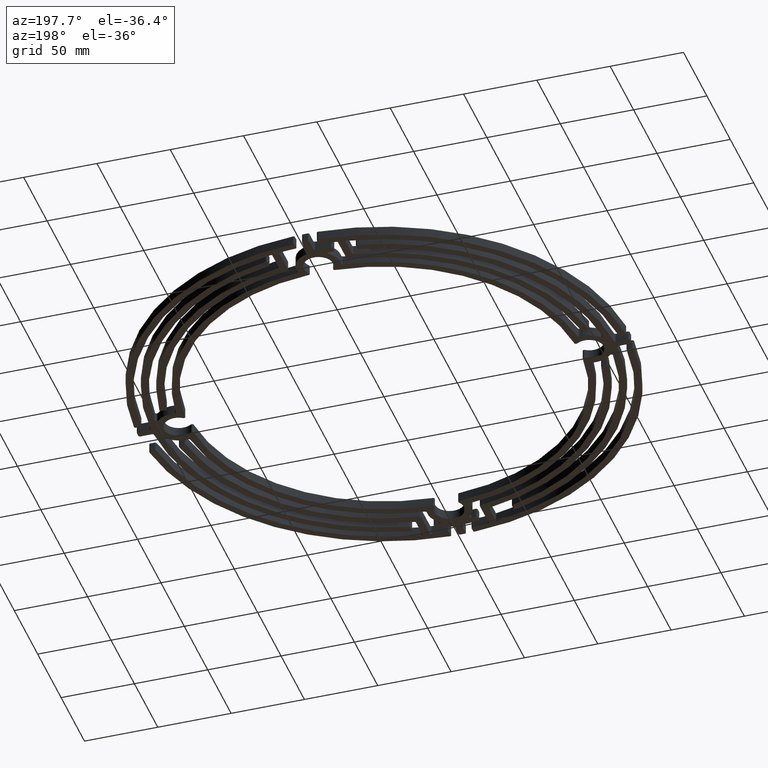
[diagram: clean part render]
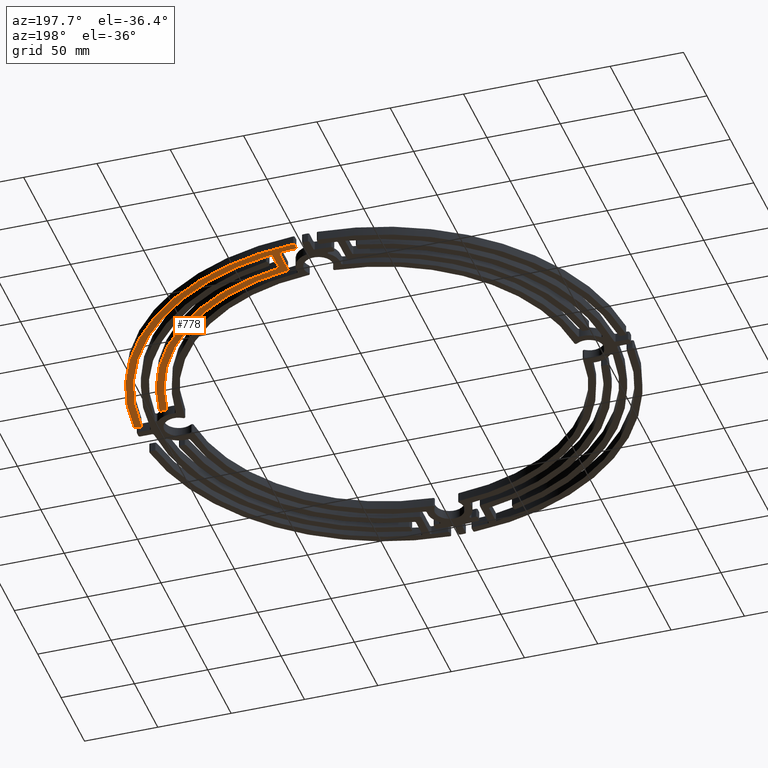
[diagram: same view with one face highlighted and labeled with its STEP entity id]
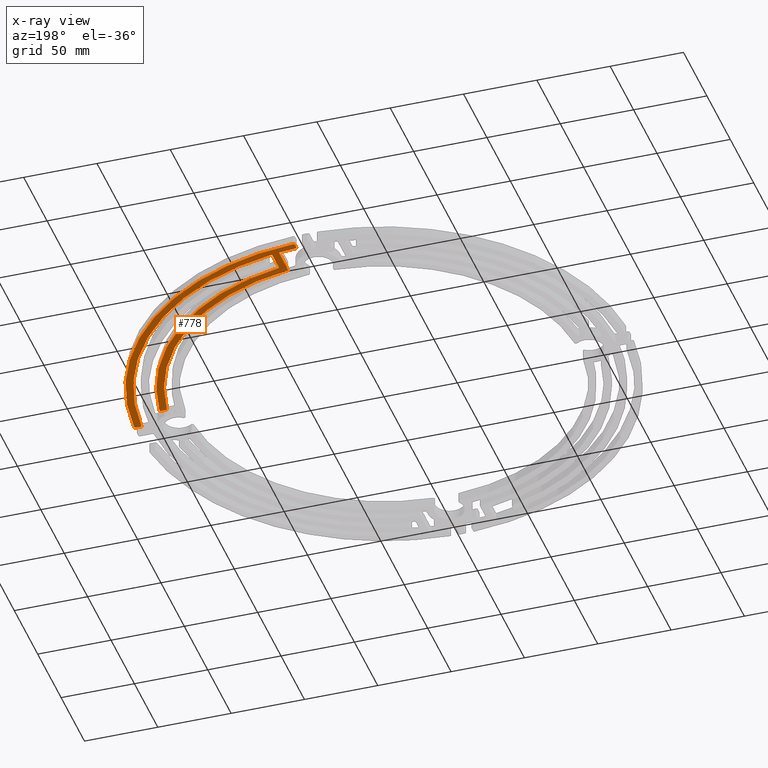
[diagram: x-ray of the same camera — body ghosted, the highlighted face saturated]
A machine part, auxiliary view. The second image highlights one B-rep face of the part: STEP entity #778.
The next image is the same camera in x-ray: the body ghosted, the highlighted face saturated — about 0% of this face is hidden behind the body in this view.
In plain terms, the highlighted planar face has unit normal (0, 0, 1).
Its self-contained STEP definition (entity closure, byte-faithful):
#12 = VERTEX_POINT ( 'NONE', #815 ) ;
#22 = VERTEX_POINT ( 'NONE', #825 ) ;
#41 = VERTEX_POINT ( 'NONE', #844 ) ;
#100 = VERTEX_POINT ( 'NONE', #903 ) ;
#105 = VERTEX_POINT ( 'NONE', #908 ) ;
#136 = VERTEX_POINT ( 'NONE', #939 ) ;
#146 = VERTEX_POINT ( 'NONE', #949 ) ;
#158 = VERTEX_POINT ( 'NONE', #961 ) ;
#165 = VERTEX_POINT ( 'NONE', #968 ) ;
#166 = VERTEX_POINT ( 'NONE', #969 ) ;
#169 = VERTEX_POINT ( 'NONE', #972 ) ;
#642 = EDGE_CURVE ( 'NONE', #6843, #169, #4456, .T. ) ;
#644 = EDGE_CURVE ( 'NONE', #22, #12, #4459, .T. ) ;
#778 = ADVANCED_FACE ( 'NONE', ( #4679 ), #5262, .F. ) ;
#815 = CARTESIAN_POINT ( 'NONE',  ( 8.550898203592815600, 167.7822461999832300, 0.0000000000000000000 ) ) ;
#825 = CARTESIAN_POINT ( 'NONE',  ( 167.7822461999832300, 8.550898203592815600, 0.0000000000000000000 ) ) ;
#844 = CARTESIAN_POINT ( 'NONE',  ( 24.99999999999998600, 159.8999687304534500, 0.0000000000000000000 ) ) ;
#903 = CARTESIAN_POINT ( 'NONE',  ( 19.99999999999998900, 161.7683529000651100, 0.0000000000000000000 ) ) ;
#908 = CARTESIAN_POINT ( 'NONE',  ( 7.500000000000000000, 166.7835423535547100, 0.0000000000000000000 ) ) ;
#939 = CARTESIAN_POINT ( 'NONE',  ( 19.99999999999998600, 142.4605208470051700, 0.0000000000000000000 ) ) ;
#949 = CARTESIAN_POINT ( 'NONE',  ( 7.500000000000000900, 163.7795774814430300, 0.0000000000000000000 ) ) ;
#961 = CARTESIAN_POINT ( 'NONE',  ( 8.448170731707319800, 162.7809215211903200, 0.0000000000000000000 ) ) ;
#968 = CARTESIAN_POINT ( 'NONE',  ( 163.7795774814430000, 7.500000000000000000, 0.0000000000000000000 ) ) ;
#969 = CARTESIAN_POINT ( 'NONE',  ( 166.7835423535547100, 7.500000000000000000, 0.0000000000000000000 ) ) ;
#972 = CARTESIAN_POINT ( 'NONE',  ( 141.4712116744565000, 20.85416666666666400, 0.0000000000000000000 ) ) ;
#2455 = ORIENTED_EDGE ( 'NONE', *, *, #3028, .F. ) ;
#2462 = ORIENTED_EDGE ( 'NONE', *, *, #2961, .F. ) ;
#2467 = ORIENTED_EDGE ( 'NONE', *, *, #3108, .F. ) ;
#2472 = ORIENTED_EDGE ( 'NONE', *, *, #3071, .T. ) ;
#2475 = ORIENTED_EDGE ( 'NONE', *, *, #3018, .T. ) ;
#2477 = ORIENTED_EDGE ( 'NONE', *, *, #642, .F. ) ;
#2915 = EDGE_LOOP ( 'NONE', ( #2477, #2475, #2462, #2467, #2472, #2455, #3725, #3703, #3702, #3701, #3723, #3706, #3710, #3712, #3713, #3720, #3716, #3718, #3719 ) ) ;
#2961 = EDGE_CURVE ( 'NONE', #100, #136, #4686, .T. ) ;
#2974 = EDGE_CURVE ( 'NONE', #165, #3540, #4707, .T. ) ;
#2979 = EDGE_CURVE ( 'NONE', #165, #166, #4713, .T. ) ;
#2987 = EDGE_CURVE ( 'NONE', #3545, #3546, #6161, .T. ) ;
#3018 = EDGE_CURVE ( 'NONE', #6843, #136, #6201, .T. ) ;
#3027 = EDGE_CURVE ( 'NONE', #22, #166, #6216, .T. ) ;
#3028 = EDGE_CURVE ( 'NONE', #105, #146, #6215, .T. ) ;
#3034 = EDGE_CURVE ( 'NONE', #6773, #169, #6226, .T. ) ;
#3043 = EDGE_CURVE ( 'NONE', #3542, #3540, #6237, .T. ) ;
#3044 = EDGE_CURVE ( 'NONE', #3545, #6772, #6238, .T. ) ;
#3054 = EDGE_CURVE ( 'NONE', #105, #12, #6251, .T. ) ;
#3059 = EDGE_CURVE ( 'NONE', #3541, #3546, #6257, .T. ) ;
#3063 = EDGE_CURVE ( 'NONE', #3542, #41, #6262, .T. ) ;
#3070 = EDGE_CURVE ( 'NONE', #3541, #41, #6273, .T. ) ;
#3071 = EDGE_CURVE ( 'NONE', #158, #146, #6276, .T. ) ;
#3073 = EDGE_CURVE ( 'NONE', #6773, #6772, #6278, .T. ) ;
#3108 = EDGE_CURVE ( 'NONE', #158, #100, #6327, .T. ) ;
#3489 = AXIS2_PLACEMENT_3D ( 'NONE', #4876, #4877, #4878 ) ;
#3490 = AXIS2_PLACEMENT_3D ( 'NONE', #4881, #4882, #4883 ) ;
#3540 = VERTEX_POINT ( 'NONE', #6516 ) ;
#3541 = VERTEX_POINT ( 'NONE', #6517 ) ;
#3542 = VERTEX_POINT ( 'NONE', #6518 ) ;
#3545 = VERTEX_POINT ( 'NONE', #6521 ) ;
#3546 = VERTEX_POINT ( 'NONE', #6522 ) ;
#3701 = ORIENTED_EDGE ( 'NONE', *, *, #2979, .F. ) ;
#3702 = ORIENTED_EDGE ( 'NONE', *, *, #3027, .T. ) ;
#3703 = ORIENTED_EDGE ( 'NONE', *, *, #644, .F. ) ;
#3706 = ORIENTED_EDGE ( 'NONE', *, *, #3043, .F. ) ;
#3710 = ORIENTED_EDGE ( 'NONE', *, *, #3063, .T. ) ;
#3712 = ORIENTED_EDGE ( 'NONE', *, *, #3070, .F. ) ;
#3713 = ORIENTED_EDGE ( 'NONE', *, *, #3059, .T. ) ;
#3716 = ORIENTED_EDGE ( 'NONE', *, *, #3044, .T. ) ;
#3718 = ORIENTED_EDGE ( 'NONE', *, *, #3073, .F. ) ;
#3719 = ORIENTED_EDGE ( 'NONE', *, *, #3034, .T. ) ;
#3720 = ORIENTED_EDGE ( 'NONE', *, *, #2987, .F. ) ;
#3723 = ORIENTED_EDGE ( 'NONE', *, *, #2974, .T. ) ;
#3725 = ORIENTED_EDGE ( 'NONE', *, *, #3054, .T. ) ;
#4456 = CIRCLE ( 'NONE', #3489, 142.9999999999999700 ) ;
#4459 = CIRCLE ( 'NONE', #3490, 167.9999999999999400 ) ;
#4679 = FACE_OUTER_BOUND ( 'NONE', #2915, .T. ) ;
#4686 = LINE ( 'NONE', #5304, #4688 ) ;
#4688 = VECTOR ( 'NONE', #5305, 1000.000000000000000 ) ;
#4707 = CIRCLE ( 'NONE', #6008, 1.000000000000000900 ) ;
#4713 = LINE ( 'NONE', #5350, #4714 ) ;
#4714 = VECTOR ( 'NONE', #5351, 1000.000000000000000 ) ;
#4876 = CARTESIAN_POINT ( 'NONE',  ( 0.0000000000000000000, 0.0000000000000000000, 0.0000000000000000000 ) ) ;
#4877 = DIRECTION ( 'NONE',  ( -0.0000000000000000000, -0.0000000000000000000, -1.000000000000000000 ) ) ;
#4878 = DIRECTION ( 'NONE',  ( 1.000000000000000000, 0.0000000000000000000, 0.0000000000000000000 ) ) ;
#4881 = CARTESIAN_POINT ( 'NONE',  ( 0.0000000000000000000, 0.0000000000000000000, 0.0000000000000000000 ) ) ;
#4882 = DIRECTION ( 'NONE',  ( 0.0000000000000000000, 0.0000000000000000000, 1.000000000000000000 ) ) ;
#4883 = DIRECTION ( 'NONE',  ( 1.000000000000000000, 0.0000000000000000000, 0.0000000000000000000 ) ) ;
#5262 = PLANE ( 'NONE',  #5998 ) ;
#5263 = CARTESIAN_POINT ( 'NONE',  ( 0.0000000000000000000, 0.0000000000000000000, 0.0000000000000000000 ) ) ;
#5264 = DIRECTION ( 'NONE',  ( 0.0000000000000000000, 0.0000000000000000000, 1.000000000000000000 ) ) ;
#5265 = DIRECTION ( 'NONE',  ( 1.000000000000000000, 0.0000000000000000000, -0.0000000000000000000 ) ) ;
#5304 = CARTESIAN_POINT ( 'NONE',  ( 19.99999999999999300, 161.7683529000651100, 0.0000000000000000000 ) ) ;
#5305 = DIRECTION ( 'NONE',  ( -3.439546717504057800E-016, -1.000000000000000000, 0.0000000000000000000 ) ) ;
#5336 = CARTESIAN_POINT ( 'NONE',  ( 163.7795774814430000, 8.500000000000000000, 0.0000000000000000000 ) ) ;
#5337 = DIRECTION ( 'NONE',  ( -0.0000000000000000000, -0.0000000000000000000, -1.000000000000000000 ) ) ;
#5338 = DIRECTION ( 'NONE',  ( 1.000000000000000000, 0.0000000000000000000, 0.0000000000000000000 ) ) ;
#5350 = CARTESIAN_POINT ( 'NONE',  ( 162.8273625653869800, 7.500000000000000000, 0.0000000000000000000 ) ) ;
#5351 = DIRECTION ( 'NONE',  ( 1.000000000000000000, 0.0000000000000000000, 0.0000000000000000000 ) ) ;
#5371 = CARTESIAN_POINT ( 'NONE',  ( 0.0000000000000000000, 0.0000000000000000000, 0.0000000000000000000 ) ) ;
#5372 = DIRECTION ( 'NONE',  ( 0.0000000000000000000, 0.0000000000000000000, 1.000000000000000000 ) ) ;
#5373 = DIRECTION ( 'NONE',  ( 1.000000000000000000, 0.0000000000000000000, 0.0000000000000000000 ) ) ;
#5455 = CARTESIAN_POINT ( 'NONE',  ( 20.99999999999998600, 142.4605208470051700, 0.0000000000000000000 ) ) ;
#5456 = DIRECTION ( 'NONE',  ( -0.0000000000000000000, -0.0000000000000000000, -1.000000000000000000 ) ) ;
#5457 = DIRECTION ( 'NONE',  ( 1.000000000000000000, 0.0000000000000000000, 0.0000000000000000000 ) ) ;
#5476 = CARTESIAN_POINT ( 'NONE',  ( 166.7835423535547100, 8.500000000000000000, 0.0000000000000000000 ) ) ;
#5477 = DIRECTION ( 'NONE',  ( -0.0000000000000000000, -0.0000000000000000000, -1.000000000000000000 ) ) ;
#5478 = DIRECTION ( 'NONE',  ( 1.000000000000000000, 3.469446951953611000E-015, 0.0000000000000000000 ) ) ;
#5479 = CARTESIAN_POINT ( 'NONE',  ( 7.500000000000000000, 167.8325057907436000, 0.0000000000000000000 ) ) ;
#5480 = DIRECTION ( 'NONE',  ( 1.732940894866419400E-016, -1.000000000000000000, 0.0000000000000000000 ) ) ;
#5493 = CARTESIAN_POINT ( 'NONE',  ( 142.4605208470051700, 21.00000000000000000, 0.0000000000000000000 ) ) ;
#5494 = DIRECTION ( 'NONE',  ( -0.0000000000000000000, -0.0000000000000000000, -1.000000000000000000 ) ) ;
#5495 = DIRECTION ( 'NONE',  ( 1.000000000000000000, 0.0000000000000000000, 0.0000000000000000000 ) ) ;
#5518 = CARTESIAN_POINT ( 'NONE',  ( 0.0000000000000000000, 0.0000000000000000000, 0.0000000000000000000 ) ) ;
#5519 = DIRECTION ( 'NONE',  ( -0.0000000000000000000, -0.0000000000000000000, -1.000000000000000000 ) ) ;
#5520 = DIRECTION ( 'NONE',  ( 1.000000000000000000, 0.0000000000000000000, 0.0000000000000000000 ) ) ;
#5521 = CARTESIAN_POINT ( 'NONE',  ( 145.4922678357856700, 21.00000000000000000, 0.0000000000000000000 ) ) ;
#5522 = DIRECTION ( 'NONE',  ( -0.0000000000000000000, -0.0000000000000000000, -1.000000000000000000 ) ) ;
#5523 = DIRECTION ( 'NONE',  ( 1.000000000000000000, 0.0000000000000000000, 0.0000000000000000000 ) ) ;
#5549 = CARTESIAN_POINT ( 'NONE',  ( 8.500000000000000000, 166.7835423535547100, 0.0000000000000000000 ) ) ;
#5550 = DIRECTION ( 'NONE',  ( -0.0000000000000000000, -0.0000000000000000000, -1.000000000000000000 ) ) ;
#5551 = DIRECTION ( 'NONE',  ( 1.000000000000000000, 0.0000000000000000000, 0.0000000000000000000 ) ) ;
#5562 = CARTESIAN_POINT ( 'NONE',  ( 25.99999999999998900, 146.7140075112121200, 0.0000000000000000000 ) ) ;
#5563 = DIRECTION ( 'NONE',  ( 0.0000000000000000000, 0.0000000000000000000, 1.000000000000000000 ) ) ;
#5564 = DIRECTION ( 'NONE',  ( 1.000000000000000000, 0.0000000000000000000, 0.0000000000000000000 ) ) ;
#5574 = CARTESIAN_POINT ( 'NONE',  ( 25.99999999999998900, 159.8999687304534500, 0.0000000000000000000 ) ) ;
#5575 = DIRECTION ( 'NONE',  ( 0.0000000000000000000, 0.0000000000000000000, 1.000000000000000000 ) ) ;
#5576 = DIRECTION ( 'NONE',  ( 1.000000000000000000, 0.0000000000000000000, 0.0000000000000000000 ) ) ;
#5590 = CARTESIAN_POINT ( 'NONE',  ( 24.99999999999998600, 161.0714127336070500, 0.0000000000000000000 ) ) ;
#5591 = DIRECTION ( 'NONE',  ( -0.0000000000000000000, 1.000000000000000000, -0.0000000000000000000 ) ) ;
#5592 = CARTESIAN_POINT ( 'NONE',  ( 8.500000000000001800, 163.7795774814430300, 0.0000000000000000000 ) ) ;
#5593 = DIRECTION ( 'NONE',  ( -0.0000000000000000000, -0.0000000000000000000, -1.000000000000000000 ) ) ;
#5594 = DIRECTION ( 'NONE',  ( 1.000000000000000000, 0.0000000000000000000, 0.0000000000000000000 ) ) ;
#5597 = CARTESIAN_POINT ( 'NONE',  ( 141.5944914182751100, 20.00000000000000000, 0.0000000000000000000 ) ) ;
#5598 = DIRECTION ( 'NONE',  ( 1.000000000000000000, 0.0000000000000000000, 0.0000000000000000000 ) ) ;
#5688 = CARTESIAN_POINT ( 'NONE',  ( 0.0000000000000000000, 0.0000000000000000000, 0.0000000000000000000 ) ) ;
#5689 = DIRECTION ( 'NONE',  ( -0.0000000000000000000, -0.0000000000000000000, -1.000000000000000000 ) ) ;
#5690 = DIRECTION ( 'NONE',  ( 1.000000000000000000, 0.0000000000000000000, 0.0000000000000000000 ) ) ;
#5998 = AXIS2_PLACEMENT_3D ( 'NONE', #5263, #5264, #5265 ) ;
#6008 = AXIS2_PLACEMENT_3D ( 'NONE', #5336, #5337, #5338 ) ;
#6017 = AXIS2_PLACEMENT_3D ( 'NONE', #5371, #5372, #5373 ) ;
#6039 = AXIS2_PLACEMENT_3D ( 'NONE', #5455, #5456, #5457 ) ;
#6042 = AXIS2_PLACEMENT_3D ( 'NONE', #5476, #5477, #5478 ) ;
#6045 = AXIS2_PLACEMENT_3D ( 'NONE', #5493, #5494, #5495 ) ;
#6052 = AXIS2_PLACEMENT_3D ( 'NONE', #5518, #5519, #5520 ) ;
#6053 = AXIS2_PLACEMENT_3D ( 'NONE', #5521, #5522, #5523 ) ;
#6061 = AXIS2_PLACEMENT_3D ( 'NONE', #5549, #5550, #5551 ) ;
#6064 = AXIS2_PLACEMENT_3D ( 'NONE', #5562, #5563, #5564 ) ;
#6068 = AXIS2_PLACEMENT_3D ( 'NONE', #5574, #5575, #5576 ) ;
#6070 = AXIS2_PLACEMENT_3D ( 'NONE', #5592, #5593, #5594 ) ;
#6092 = AXIS2_PLACEMENT_3D ( 'NONE', #5688, #5689, #5690 ) ;
#6161 = CIRCLE ( 'NONE', #6017, 148.0000000000000000 ) ;
#6201 = CIRCLE ( 'NONE', #6039, 1.000000000000000900 ) ;
#6215 = LINE ( 'NONE', #5479, #6217 ) ;
#6216 = CIRCLE ( 'NONE', #6042, 1.000000000000000900 ) ;
#6217 = VECTOR ( 'NONE', #5480, 1000.000000000000000 ) ;
#6226 = CIRCLE ( 'NONE', #6045, 1.000000000000000900 ) ;
#6237 = CIRCLE ( 'NONE', #6052, 162.9999999999999700 ) ;
#6238 = CIRCLE ( 'NONE', #6053, 1.000000000000000900 ) ;
#6251 = CIRCLE ( 'NONE', #6061, 1.000000000000000900 ) ;
#6257 = CIRCLE ( 'NONE', #6064, 1.000000000000000900 ) ;
#6262 = CIRCLE ( 'NONE', #6068, 1.000000000000000900 ) ;
#6273 = LINE ( 'NONE', #5590, #6274 ) ;
#6274 = VECTOR ( 'NONE', #5591, 1000.000000000000000 ) ;
#6276 = CIRCLE ( 'NONE', #6070, 0.9999999999999991100 ) ;
#6278 = LINE ( 'NONE', #5597, #6279 ) ;
#6279 = VECTOR ( 'NONE', #5598, 1000.000000000000000 ) ;
#6327 = CIRCLE ( 'NONE', #6092, 163.0000000000000000 ) ;
#6516 = CARTESIAN_POINT ( 'NONE',  ( 162.7809215211903200, 8.448170731707318000, 0.0000000000000000000 ) ) ;
#6517 = CARTESIAN_POINT ( 'NONE',  ( 24.99999999999998600, 146.7140075112121200, 0.0000000000000000000 ) ) ;
#6518 = CARTESIAN_POINT ( 'NONE',  ( 26.16049382716048300, 160.8870055744686200, 0.0000000000000000000 ) ) ;
#6521 = CARTESIAN_POINT ( 'NONE',  ( 146.4820111543964700, 21.14285714285714200, 0.0000000000000000000 ) ) ;
#6522 = CARTESIAN_POINT ( 'NONE',  ( 25.82550335570468600, 145.7293497426804800, 0.0000000000000000000 ) ) ;
#6560 = CARTESIAN_POINT ( 'NONE',  ( 145.4922678357856700, 20.00000000000000000, 0.0000000000000000000 ) ) ;
#6561 = CARTESIAN_POINT ( 'NONE',  ( 142.4605208470051700, 20.00000000000000000, 0.0000000000000000000 ) ) ;
#6631 = CARTESIAN_POINT ( 'NONE',  ( 20.85416666666665000, 141.4712116744565000, 0.0000000000000000000 ) ) ;
#6772 = VERTEX_POINT ( 'NONE', #6560 ) ;
#6773 = VERTEX_POINT ( 'NONE', #6561 ) ;
#6843 = VERTEX_POINT ( 'NONE', #6631 ) ;